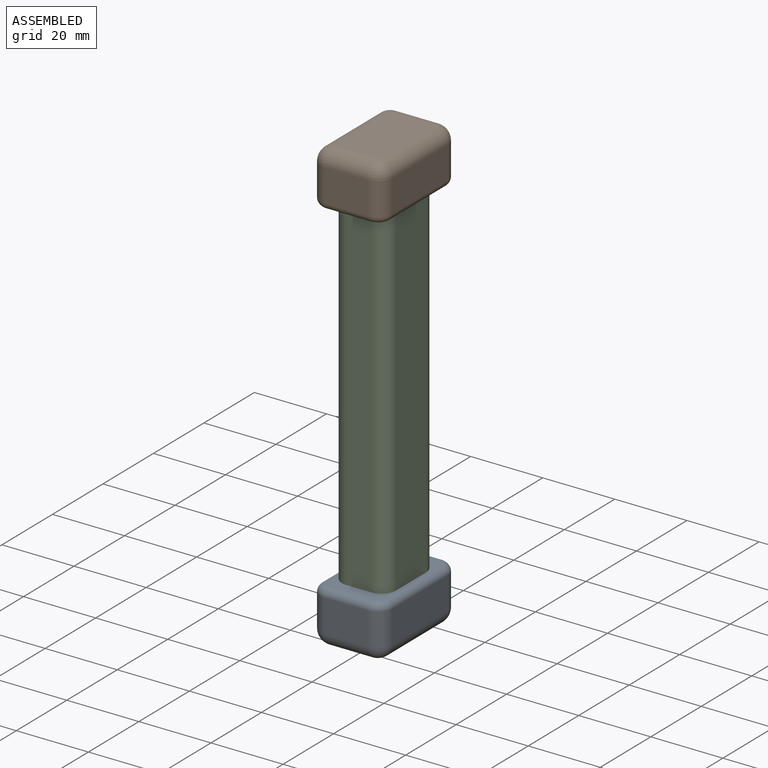
[diagram: assembled view]
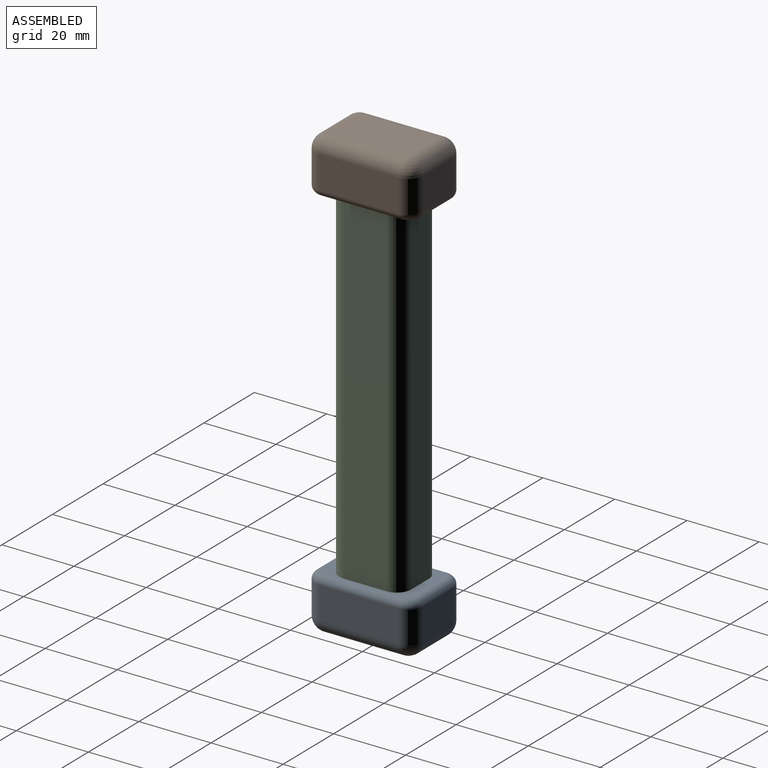
[diagram: assembled view, second angle]
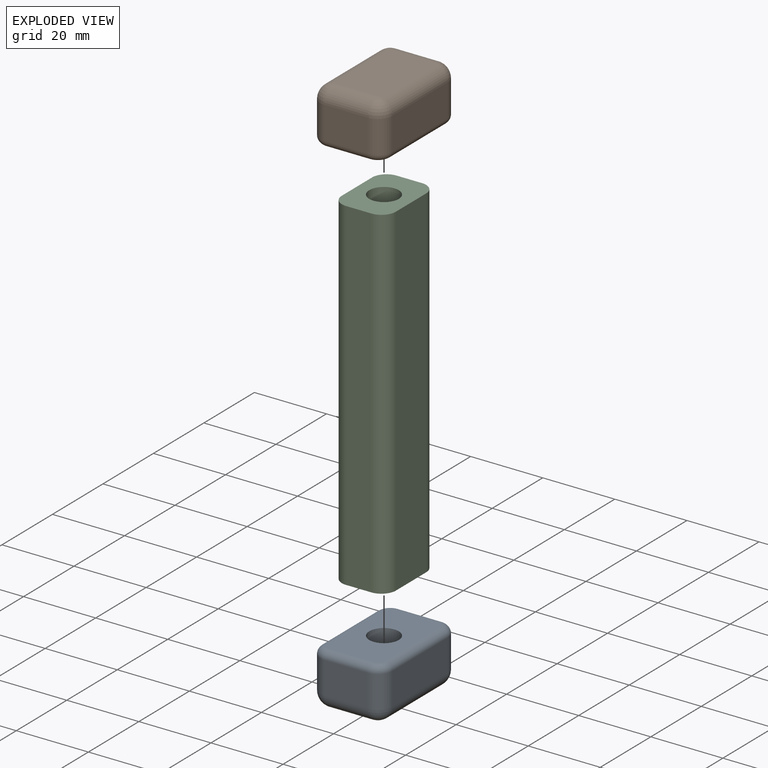
[diagram: exploded view]
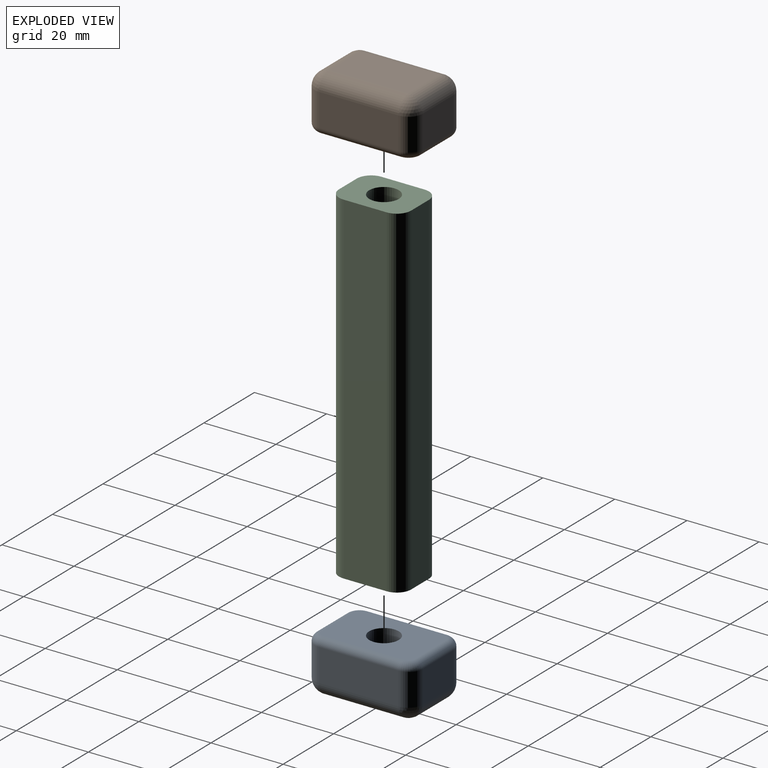
[diagram: exploded view, second angle]
ASSEMBLY  parts=3 mates=2
PART A: 28 faces, bbox 20.7x30.7x15 mm
  f0: plane 12x9mm, normal (0,-1,0), area 108mm2, adj f8,f14,f17,f24
  f1: plane 22x9mm, normal (1,0,0), area 198mm2, adj f11,f15,f17,f23
  f2: plane 12x9mm, normal (0,1,0), area 108mm2, adj f6,f10,f11,f19
  f3: plane 22x9mm, normal (-1,0,0), area 198mm2, adj f6,f8,f9,f20
  f4: plane 22x12mm, normal (0,0,1), area 264mm2, adj f9,f10,f14,f15
  f5: plane 26x16mm, normal (0,0,-1), area 359.8mm2, adj f18,f19,f20,f21,f22,f23,f24,f25
  f6: cylinder r=4mm len=9mm, axis (0,0,1), area 56.5mm2, adj f2,f3,f7,f18
  f7: sphere r=4mm, area 25.1mm2, adj f6,f9,f10
  f8: cylinder r=4mm len=9mm, axis (0,0,-1), area 56.5mm2, adj f0,f3,f12,f22
  f9: cylinder r=4mm len=22mm, axis (0,1,0), area 138.2mm2, adj f3,f4,f7,f12
  f10: cylinder r=4mm len=12mm, axis (1,0,0), area 75.4mm2, adj f2,f4,f7,f13
  f11: cylinder r=4mm len=9mm, axis (0,0,-1), area 56.5mm2, adj f1,f2,f13,f21
  f12: sphere r=4mm, area 25.1mm2, adj f8,f9,f14
  f13: sphere r=4mm, area 25.1mm2, adj f10,f11,f15
  f14: cylinder r=4mm len=12mm, axis (-1,0,0), area 75.4mm2, adj f0,f4,f12,f16
  f15: cylinder r=4mm len=22mm, axis (0,-1,0), area 138.2mm2, adj f1,f4,f13,f16
  f16: sphere r=4mm, area 25.1mm2, adj f14,f15,f17
  f17: cylinder r=4mm len=9mm, axis (0,0,1), area 56.5mm2, adj f0,f1,f16,f25
  f18: torus R=2mm, axis (0,0,1), area 16.2mm2, adj f5,f6,f19,f20
  f19: cylinder r=2mm len=12mm, axis (-1,0,0), area 37.7mm2, adj f2,f5,f18,f21
  f20: cylinder r=2mm len=22mm, axis (0,-1,0), area 69.1mm2, adj f3,f5,f18,f22
  f21: torus R=2mm, axis (0,0,1), area 16.2mm2, adj f5,f11,f19,f23
  f22: torus R=2mm, axis (0,0,1), area 16.2mm2, adj f5,f8,f20,f24
  f23: cylinder r=2mm len=22mm, axis (0,1,0), area 69.1mm2, adj f1,f5,f21,f25
  f24: cylinder r=2mm len=12mm, axis (1,0,0), area 37.7mm2, adj f0,f5,f22,f25
  f25: torus R=2mm, axis (0,0,1), area 16.2mm2, adj f5,f17,f23,f24
  f26: cylinder r=4.1mm len=10mm, axis (0,0,-1), area 257.6mm2, adj f5,f27
  f27: plane 8.2x8.2mm, normal (0,0,-1), area 52.8mm2, adj f26
PART B: same geometry as A
PART C: 11 faces, bbox 15x20x95 mm
  f0: plane 95x7mm, normal (0,1,0), area 665mm2, adj f1,f8,f9,f10
  f1: cylinder r=4mm len=95mm, axis (0,0,-1), area 596.9mm2, adj f0,f2,f9,f10
  f2: plane 95x12mm, normal (-1,0,0), area 1140mm2, adj f1,f3,f9,f10
  f3: cylinder r=4mm len=95mm, axis (0,0,-1), area 596.9mm2, adj f2,f4,f9,f10
  f4: plane 95x7mm, normal (0,-1,0), area 665mm2, adj f3,f5,f9,f10
  f5: cylinder r=4mm len=95mm, axis (0,0,-1), area 596.9mm2, adj f4,f6,f9,f10
  f6: plane 95x12mm, normal (1,0,0), area 1140mm2, adj f5,f8,f9,f10
  f7: cylinder r=4.1mm len=95mm, axis (0,0,-1), area 2447.3mm2, adj f9,f10
  f8: cylinder r=4mm len=95mm, axis (0,0,-1), area 596.9mm2, adj f0,f6,f9,f10
  f9: plane 20x15mm, normal (0,0,1), area 233.5mm2, adj f0,f1,f2,f3,f4,f5,f6,f7
  f10: plane 20x15mm, normal (0,0,-1), area 233.5mm2, adj f0,f1,f2,f3,f4,f5,f6,f7
PLACE A rot(axis=(0,1,0),180deg) t=(0,0,0)mm
PLACE B t=(0,0,95)mm
PLACE C at identity
MATE cylindrical A.f26 <-> C.f7  axis (0,0,1) through (0,0,0)mm
MATE cylindrical B.f26 <-> C.f7  axis (0,0,-1) through (0,0,95)mm
